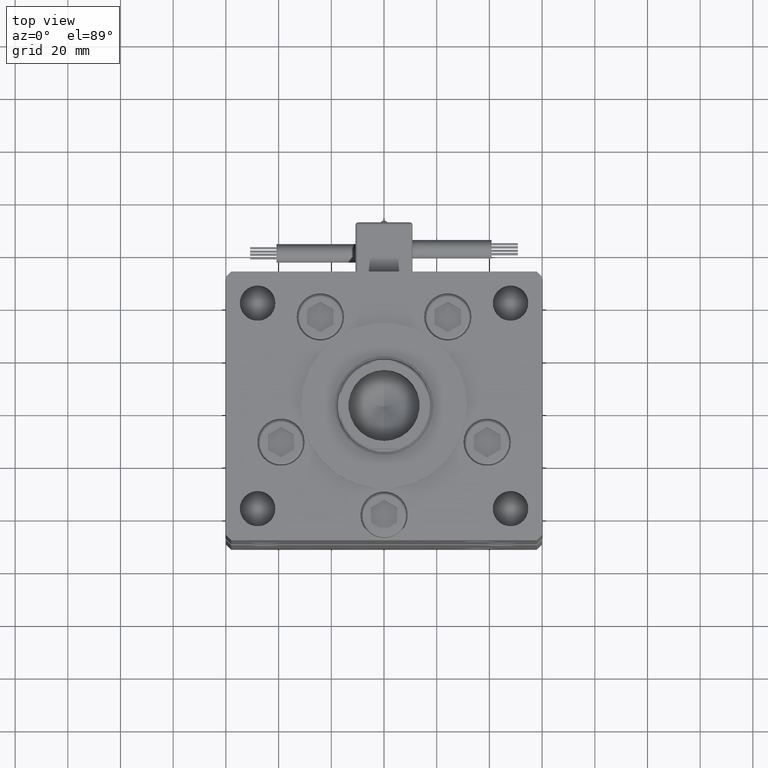
[diagram: clean part render]
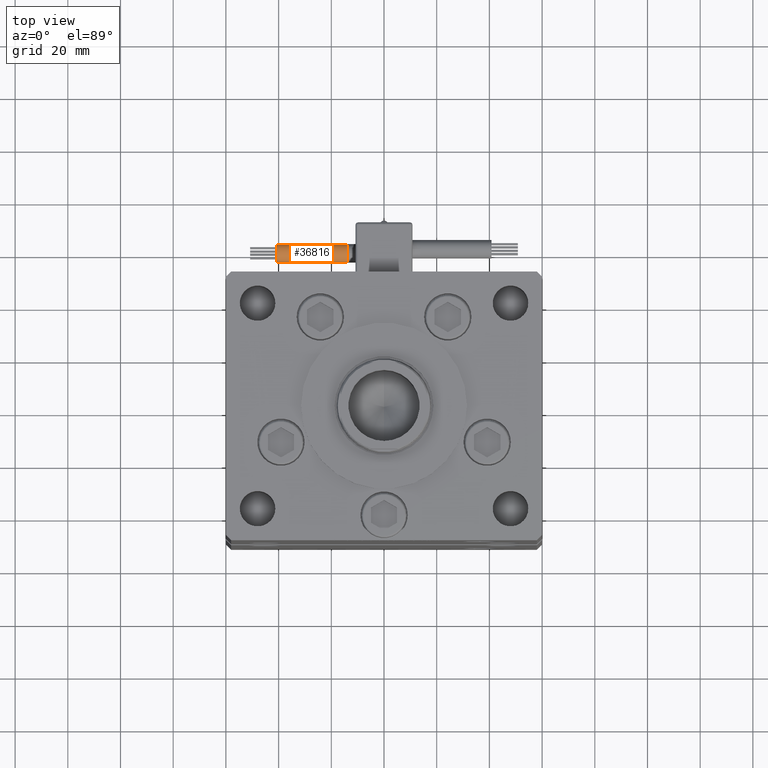
[diagram: same view with one face highlighted and labeled with its STEP entity id]
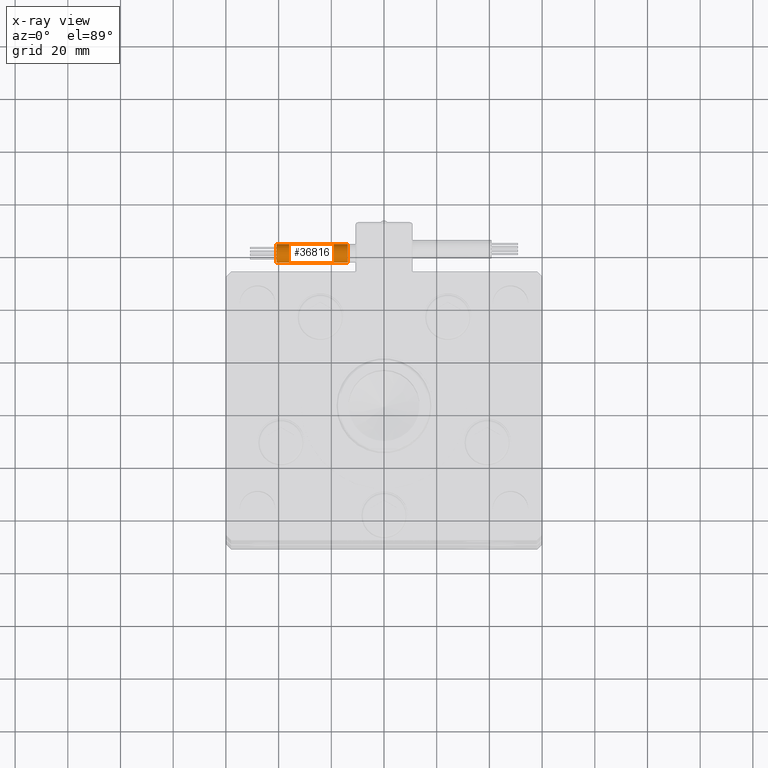
[diagram: x-ray of the same camera — body ghosted, the highlighted face saturated]
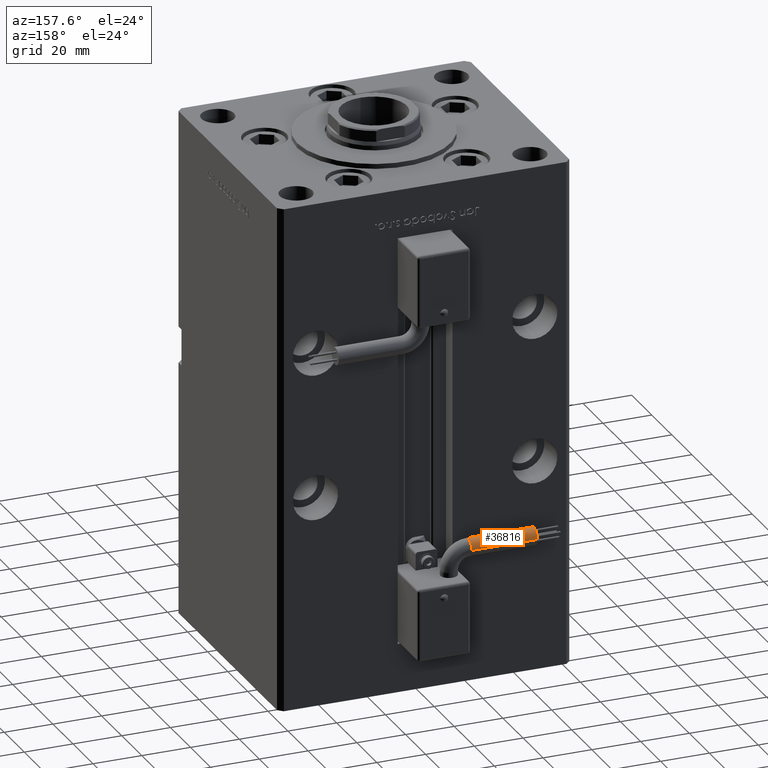
[diagram: same view with one face highlighted and labeled with its STEP entity id]
A machine part, top view. The second image highlights one B-rep face of the part: STEP entity #36816.
The next image is the same camera in x-ray: the body ghosted, the highlighted face saturated — about 0% of this face is hidden behind the body in this view.
A second angle (auxiliary view) of the same face is appended — the face is thin or edge-on in the first view.
In plain terms, the highlighted cylindrical surface (edge-blend (fillet) strip) has radius 3.5 mm, axis along (-1, -0, -0).
Its self-contained STEP definition (entity closure, byte-faithful):
#779 = AXIS2_PLACEMENT_3D ( 'NONE', #40356, #45673, #18911 ) ;
#2644 = CARTESIAN_POINT ( 'NONE',  ( 13.79999999999999893, 42.00000000000000000, -68.50000000000000000 ) ) ;
#2996 = FACE_OUTER_BOUND ( 'NONE', #26031, .T. ) ;
#3146 = CIRCLE ( 'NONE', #11243, 3.500000000000003109 ) ;
#8429 = ORIENTED_EDGE ( 'NONE', *, *, #38028, .T. ) ;
#9242 = ORIENTED_EDGE ( 'NONE', *, *, #42285, .F. ) ;
#11243 = AXIS2_PLACEMENT_3D ( 'NONE', #14367, #52158, #48491 ) ;
#11537 = DIRECTION ( 'NONE',  ( 1.000000000000000000, -2.599999999999999847E-16, 2.220446049250000002E-16 ) ) ;
#13344 = AXIS2_PLACEMENT_3D ( 'NONE', #39016, #34514, #48022 ) ;
#14367 = CARTESIAN_POINT ( 'NONE',  ( 13.79999999999999893, 42.00000000000000000, -65.00000000000000000 ) ) ;
#14503 = CARTESIAN_POINT ( 'NONE',  ( 40.80000000000000426, 45.50000000000000711, -65.00000000000000000 ) ) ;
#16176 = VERTEX_POINT ( 'NONE', #14503 ) ;
#18365 = EDGE_CURVE ( 'NONE', #48159, #31356, #49616, .T. ) ;
#18911 = DIRECTION ( 'NONE',  ( 0.000000000000000000, 0.000000000000000000, -1.000000000000000000 ) ) ;
#19923 = CARTESIAN_POINT ( 'NONE',  ( 13.79999999999999893, 42.00000000000000000, -65.00000000000000000 ) ) ;
#23363 = ORIENTED_EDGE ( 'NONE', *, *, #49655, .T. ) ;
#23380 = LINE ( 'NONE', #40588, #38984 ) ;
#24993 = DIRECTION ( 'NONE',  ( -4.956352788505158337E-16, -1.000000000000000000, 0.000000000000000000 ) ) ;
#25269 = CYLINDRICAL_SURFACE ( 'NONE', #34952, 3.500000000000003109 ) ;
#26031 = EDGE_LOOP ( 'NONE', ( #8429, #51549, #23363, #9242, #36442 ) ) ;
#27636 = CARTESIAN_POINT ( 'NONE',  ( 13.79999999999999893, 38.50000000000000000, -65.00000000000000000 ) ) ;
#27797 = CIRCLE ( 'NONE', #13344, 3.500000000000003109 ) ;
#28788 = EDGE_CURVE ( 'NONE', #36195, #47480, #3146, .T. ) ;
#30023 = DIRECTION ( 'NONE',  ( 1.000000000000000000, -2.599999999999999847E-16, 2.220446049250000002E-16 ) ) ;
#31226 = CARTESIAN_POINT ( 'NONE',  ( 13.79999999999999893, 45.50000000000000711, -65.00000000000000000 ) ) ;
#31356 = VERTEX_POINT ( 'NONE', #51774 ) ;
#33270 = CARTESIAN_POINT ( 'NONE',  ( 13.79999999999999716, 38.50000000000000000, -65.00000000000000000 ) ) ;
#34514 = DIRECTION ( 'NONE',  ( 1.000000000000000000, 0.000000000000000000, 2.220446049250000002E-16 ) ) ;
#34952 = AXIS2_PLACEMENT_3D ( 'NONE', #19923, #37146, #24993 ) ;
#36195 = VERTEX_POINT ( 'NONE', #2644 ) ;
#36442 = ORIENTED_EDGE ( 'NONE', *, *, #18365, .F. ) ;
#36816 = ADVANCED_FACE ( 'NONE', ( #2996 ), #25269, .T. ) ;
#36840 = CIRCLE ( 'NONE', #779, 3.500000000000003109 ) ;
#37146 = DIRECTION ( 'NONE',  ( 1.000000000000000000, -2.599999999999999847E-16, 2.220446049250000002E-16 ) ) ;
#38028 = EDGE_CURVE ( 'NONE', #48159, #36195, #27797, .T. ) ;
#38984 = VECTOR ( 'NONE', #30023, 1000.000000000000000 ) ;
#39016 = CARTESIAN_POINT ( 'NONE',  ( 13.79999999999999893, 42.00000000000000000, -65.00000000000000000 ) ) ;
#40094 = VECTOR ( 'NONE', #11537, 1000.000000000000000 ) ;
#40356 = CARTESIAN_POINT ( 'NONE',  ( 40.80000000000000426, 42.00000000000000000, -65.00000000000000000 ) ) ;
#40588 = CARTESIAN_POINT ( 'NONE',  ( 13.80000000000000071, 45.50000000000000711, -65.00000000000000000 ) ) ;
#42285 = EDGE_CURVE ( 'NONE', #31356, #16176, #36840, .T. ) ;
#45673 = DIRECTION ( 'NONE',  ( 1.000000000000000000, 0.000000000000000000, 2.220446049250000002E-16 ) ) ;
#47480 = VERTEX_POINT ( 'NONE', #31226 ) ;
#48022 = DIRECTION ( 'NONE',  ( 0.000000000000000000, 0.000000000000000000, -1.000000000000000000 ) ) ;
#48159 = VERTEX_POINT ( 'NONE', #27636 ) ;
#48491 = DIRECTION ( 'NONE',  ( 0.000000000000000000, 0.000000000000000000, -1.000000000000000000 ) ) ;
#49616 = LINE ( 'NONE', #33270, #40094 ) ;
#49655 = EDGE_CURVE ( 'NONE', #47480, #16176, #23380, .T. ) ;
#51549 = ORIENTED_EDGE ( 'NONE', *, *, #28788, .T. ) ;
#51774 = CARTESIAN_POINT ( 'NONE',  ( 40.80000000000000426, 38.50000000000000000, -65.00000000000000000 ) ) ;
#52158 = DIRECTION ( 'NONE',  ( 1.000000000000000000, 0.000000000000000000, 2.220446049250000002E-16 ) ) ;